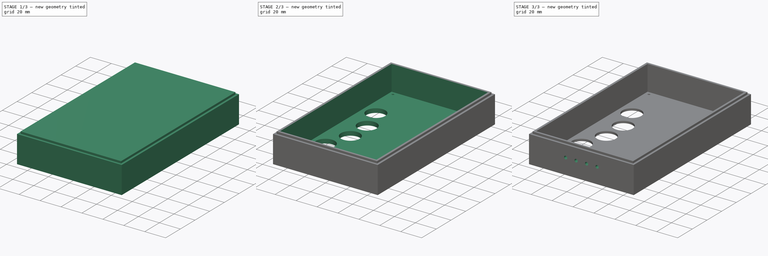
[diagram: build sequence overview — one tinted view per stage of 3, left to right]
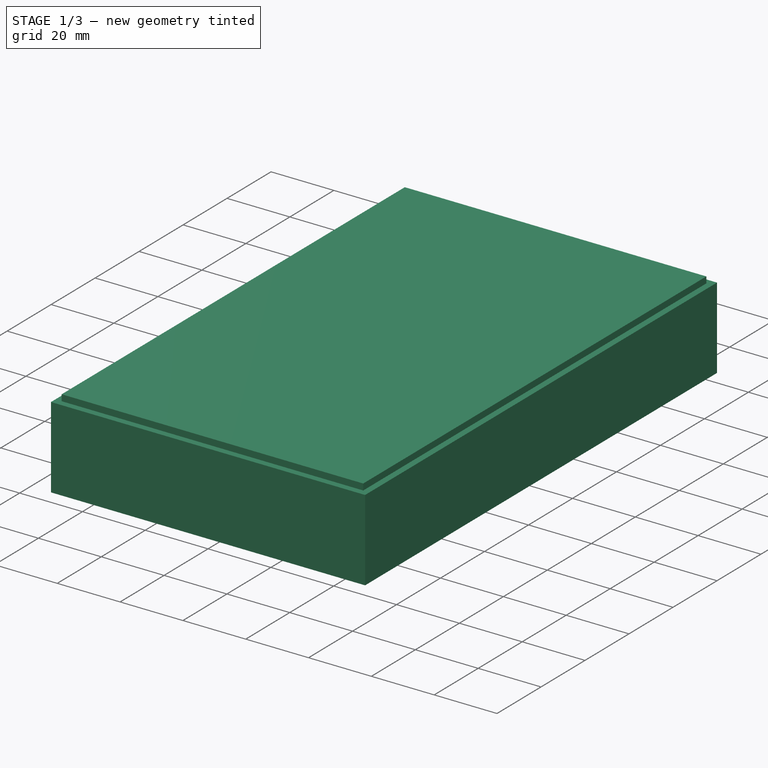
[diagram: stage 1 of 3 — iso view after this stage's code; geometry added in this stage tinted green]
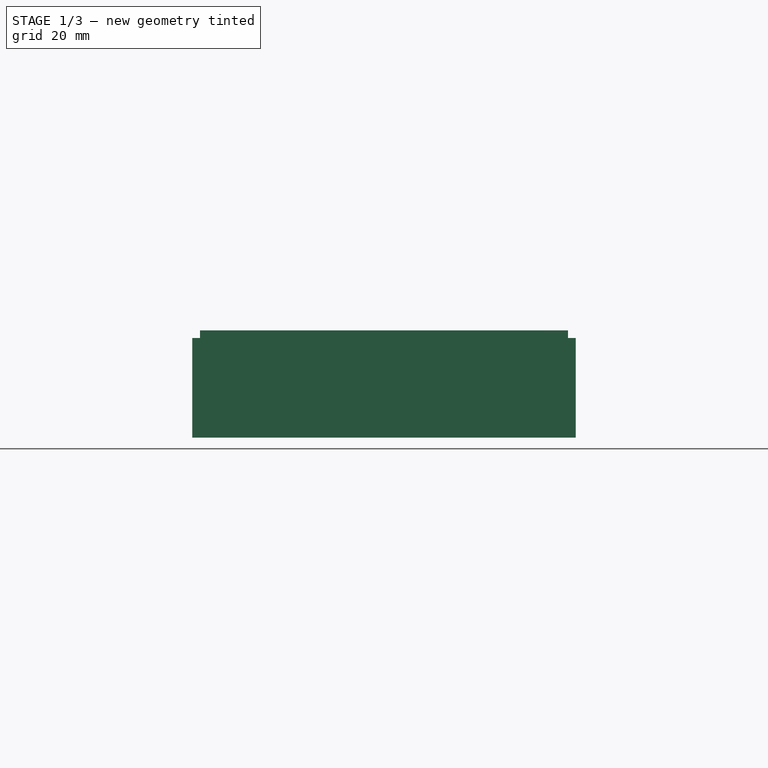
[diagram: stage 1 of 3 — front view after this stage's code; geometry added in this stage tinted green]
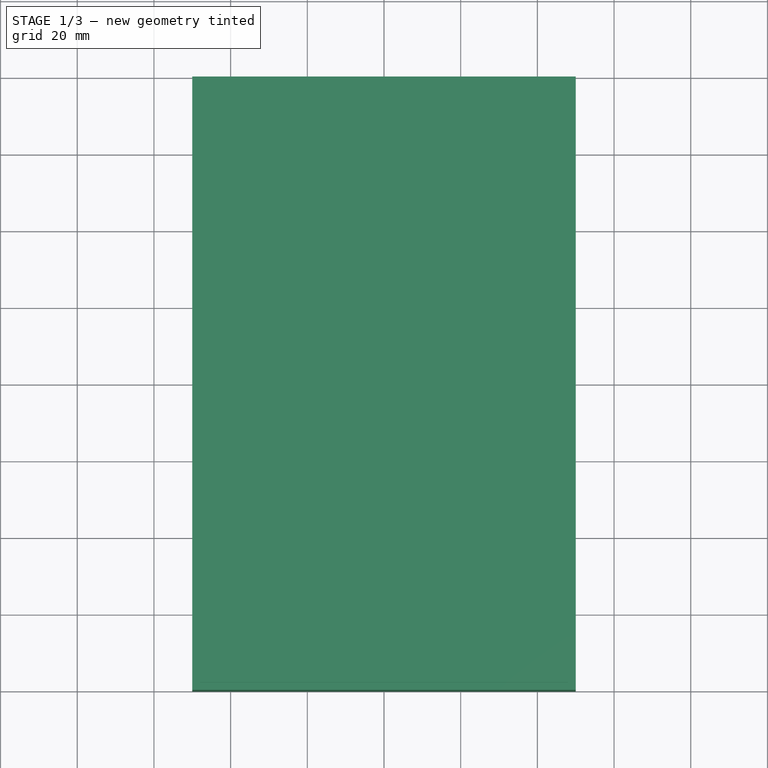
[diagram: stage 1 of 3 — top view after this stage's code; geometry added in this stage tinted green]
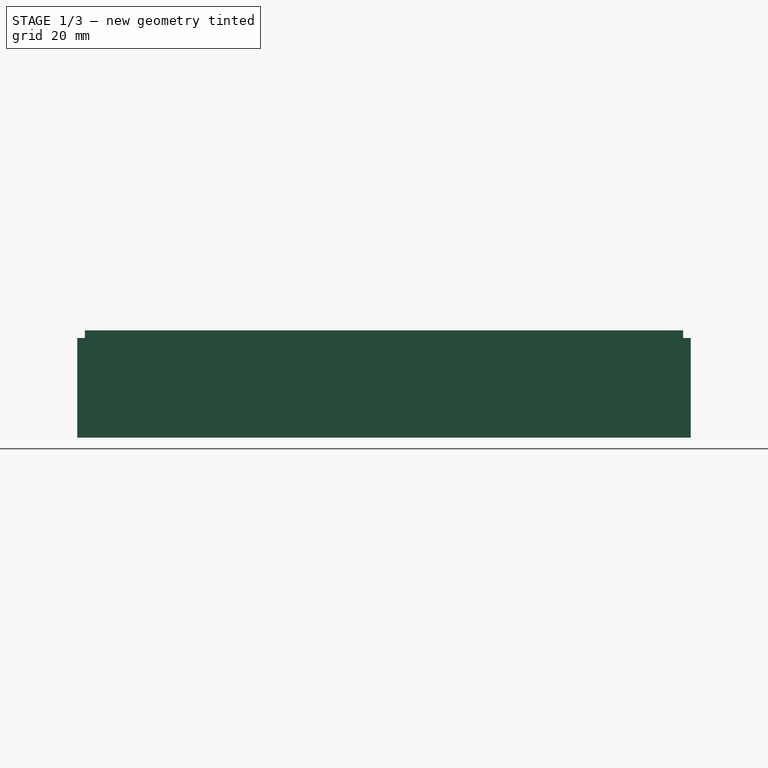
[diagram: stage 1 of 3 — right view after this stage's code; geometry added in this stage tinted green]
FCSTD DOCUMENT  (FreeCAD 0.19R24291 (Git))
Label: trueimage_10button_top
License: All rights reserved
LicenseURL: http://en.wikipedia.org/wiki/All_rights_reserved
objects: Sketcher::SketchObject×7, PartDesign::Pocket×5, PartDesign::Pad×2, PartDesign::Body×1
note: 22 computed .brp shape members not serialized (recipe doc carries the construction recipe); baked Part::Feature solids carry a one-line shape summary decoded from their .brp

FEATURE [Sketcher::SketchObject] Sketch
  FullyConstrained = true
  MapMode = 5
  Support = -> [XY_Plane]
  sketch-geometry (4):
    g0: LineSegment StartX=-50 StartY=80 StartZ=0 EndX=50 EndY=80 EndZ=0
    g1: LineSegment StartX=50 StartY=80 StartZ=0 EndX=50 EndY=-80 EndZ=0
    g2: LineSegment StartX=50 StartY=-80 StartZ=0 EndX=-50 EndY=-80 EndZ=0
    g3: LineSegment StartX=-50 StartY=-80 StartZ=0 EndX=-50 EndY=80 EndZ=0
  constraints (10):
    c: Coincident(g0,g1)
    c: Coincident(g1,g2)
    c: Coincident(g2,g3)
    c: Coincident(g3,g0)
    c: Horizontal(g2)
    c: Vertical(g3)
    c: DistanceX(g2,g1) = 100
    c: DistanceY(g1,g1) = 160
    c: Symmetric(g0,g1,g-1)
    c: Symmetric(g0,g0,g-2)
FEATURE [PartDesign::Pad] Pad
  Direction = (1,1,1)
  Length = 26
  Length2 = 100
  Profile = -> Sketch
  Refine = true
  Type = 0
FEATURE [Sketcher::SketchObject] Sketch001
  FullyConstrained = true
  MapMode = 5
  Support = -> [XY_Plane]
  sketch-geometry (4):
    g0: LineSegment StartX=-48 StartY=78 StartZ=0 EndX=48 EndY=78 EndZ=0
    g1: LineSegment StartX=48 StartY=78 StartZ=0 EndX=48 EndY=-78 EndZ=0
    g2: LineSegment StartX=48 StartY=-78 StartZ=0 EndX=-48 EndY=-78 EndZ=0
    g3: LineSegment StartX=-48 StartY=-78 StartZ=0 EndX=-48 EndY=78 EndZ=0
  constraints (10):
    c: Coincident(g0,g1)
    c: Coincident(g1,g2)
    c: Coincident(g2,g3)
    c: Coincident(g3,g0)
    c: Horizontal(g2)
    c: Vertical(g3)
    c: Symmetric(g0,g1,g-1)
    c: Symmetric(g0,g0,g-2)
    c: DistanceY(g1,g1) = 156
    c: DistanceX(g2,g2) = 96
FEATURE [Sketcher::SketchObject] Sketch002
  FullyConstrained = true
  MapMode = 5
  Support = -> [XY_Plane]
  sketch-geometry (4):
    g0: Circle CenterX=42.25 CenterY=72.5 CenterZ=0 NormalX=0 NormalY=0 NormalZ=1 AngleXU=0 Radius=1
    g1: Circle CenterX=-42.25 CenterY=72.5 CenterZ=0 NormalX=0 NormalY=0 NormalZ=1 AngleXU=0 Radius=1
    g2: Circle CenterX=42.25 CenterY=-72.5 CenterZ=0 NormalX=0 NormalY=0 NormalZ=1 AngleXU=0 Radius=1
    g3: Circle CenterX=-42.25 CenterY=-72.5 CenterZ=0 NormalX=0 NormalY=0 NormalZ=1 AngleXU=0 Radius=1
  constraints (10):
    c: Radius(g0) = 1
    c: Radius(g1) = 1
    c: DistanceX(g1,g0) = 84.5
    c: Symmetric(g2,g3,g-2)
    c: Symmetric(g2,g0,g-1)
    c: Horizontal(g0,g1)
    c: Vertical(g1,g3)
    c: Equal(g3,g2)
    c: Equal(g2,g0)
    c: DistanceY(g2,g0) = 145
FEATURE [Sketcher::SketchObject] Sketch003
  FullyConstrained = false
  MapMode = 5
  Support = -> [XY_Plane]
  sketch-geometry (8):
    g0: Circle CenterX=33.25 CenterY=36.5 CenterZ=0 NormalX=0 NormalY=0 NormalZ=1 AngleXU=0 Radius=9
    g1: Circle CenterX=25.45 CenterY=13.5 CenterZ=0 NormalX=0 NormalY=0 NormalZ=1 AngleXU=0 Radius=9
    g2: Circle CenterX=25.45 CenterY=-9.5 CenterZ=0 NormalX=0 NormalY=0 NormalZ=1 AngleXU=0 Radius=9
    g3: Circle CenterX=33.25 CenterY=-32.5 CenterZ=0 NormalX=0 NormalY=0 NormalZ=1 AngleXU=0 Radius=9
    g4: Circle CenterX=-33.25 CenterY=36.5 CenterZ=0 NormalX=0 NormalY=0 NormalZ=1 AngleXU=0 Radius=9
    g5: Circle CenterX=-25.45 CenterY=13.5 CenterZ=0 NormalX=0 NormalY=0 NormalZ=1 AngleXU=0 Radius=9
    g6: Circle CenterX=-25.45 CenterY=-9.5 CenterZ=0 NormalX=0 NormalY=0 NormalZ=1 AngleXU=0 Radius=9
    g7: Circle CenterX=-33.25 CenterY=-32.5 CenterZ=0 NormalX=0 NormalY=0 NormalZ=1 AngleXU=0 Radius=9
  constraints (20):
    c: Radius(g0) = 9
    c: Radius(g1) = 9
    c: DistanceY(g1,g0) = 23
    c: DistanceX(g1,g0) = 7.8
    c: Radius(g2) = 9
    c: Vertical(g2,g1)
    c: DistanceY(g2,g1) = 23
    c: Radius(g3) = 9
    c: Vertical(g0,g3)
    c: DistanceY(g3,g2) = 23
    c: Radius(g4) = 9
    c: DistanceX(g4,g5) = 7.8
    c: Radius(g5) = 9
    c: DistanceY(g5,g4) = 23
    c: Vertical(g5,g6)
    c: Equal(g6,g5)
    c: DistanceY(g6,g5) = 23
    c: Vertical(g7,g4)
    c: Equal(g7,g4)
    c: DistanceY(g7,g6) = 23
FEATURE [Sketcher::SketchObject] Sketch005
  AttachmentOffset = pos=(0,0,28) rot=(0,0,1;0rad)
  FullyConstrained = false
  MapMode = 5
  Placement = pos=(0,0,28) rot=(0,0,1;0rad)
  Support = -> [XY_Plane]
  sketch-geometry (4):
    g0: LineSegment StartX=-46 StartY=76 StartZ=0 EndX=46 EndY=76 EndZ=0
    g1: LineSegment StartX=46 StartY=76 StartZ=0 EndX=46 EndY=-76 EndZ=0
    g2: LineSegment StartX=46 StartY=-76 StartZ=0 EndX=-46 EndY=-76 EndZ=0
    g3: LineSegment StartX=-46 StartY=-76 StartZ=0 EndX=-46 EndY=76 EndZ=0
  constraints (8):
    c: Coincident(g0,g1)
    c: Coincident(g1,g2)
    c: Coincident(g2,g3)
    c: Coincident(g3,g0)
    c: Horizontal(g2)
    c: Vertical(g3)
    c: Symmetric(g0,g1,g-1)
    c: Symmetric(g0,g0,g-2)
FEATURE [PartDesign::Pad] Pad001
  BaseFeature = -> Pad
  Direction = (1,1,1)
  Length = 28
  Length2 = 100
  Profile = -> Sketch001
  Refine = true
  Type = 0
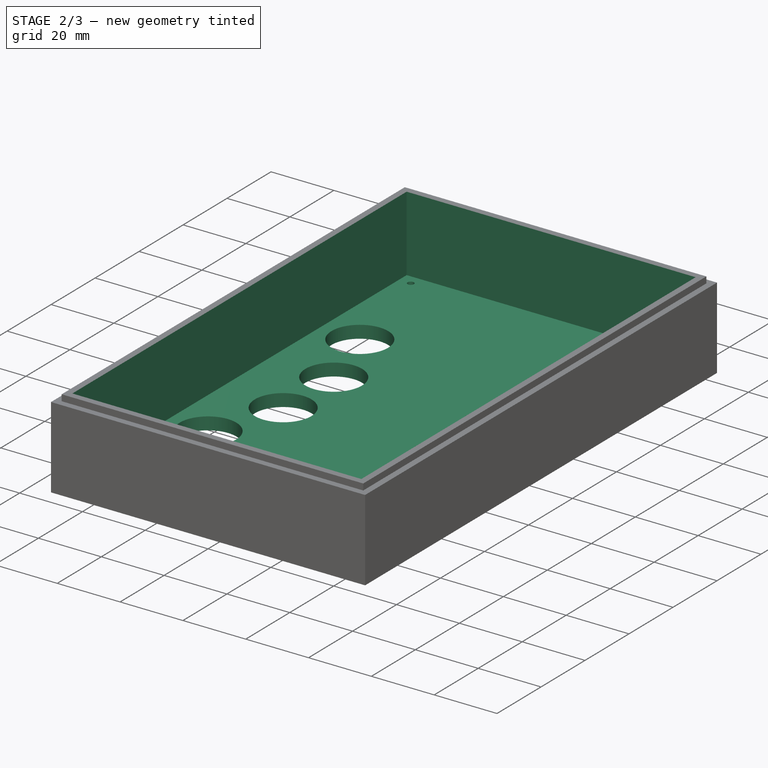
[diagram: stage 2 of 3 — iso view after this stage's code; geometry added in this stage tinted green]
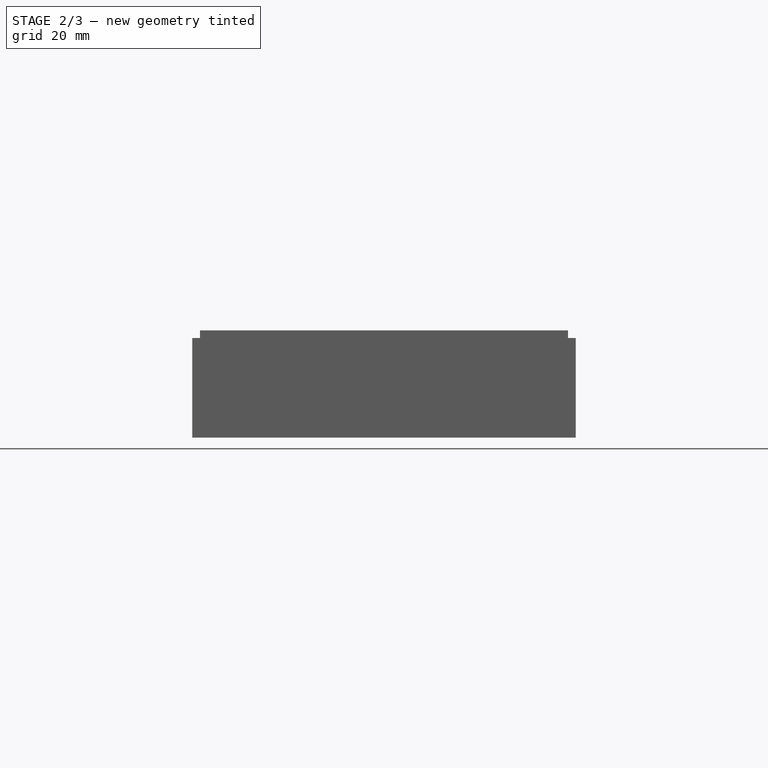
[diagram: stage 2 of 3 — front view after this stage's code; geometry added in this stage tinted green]
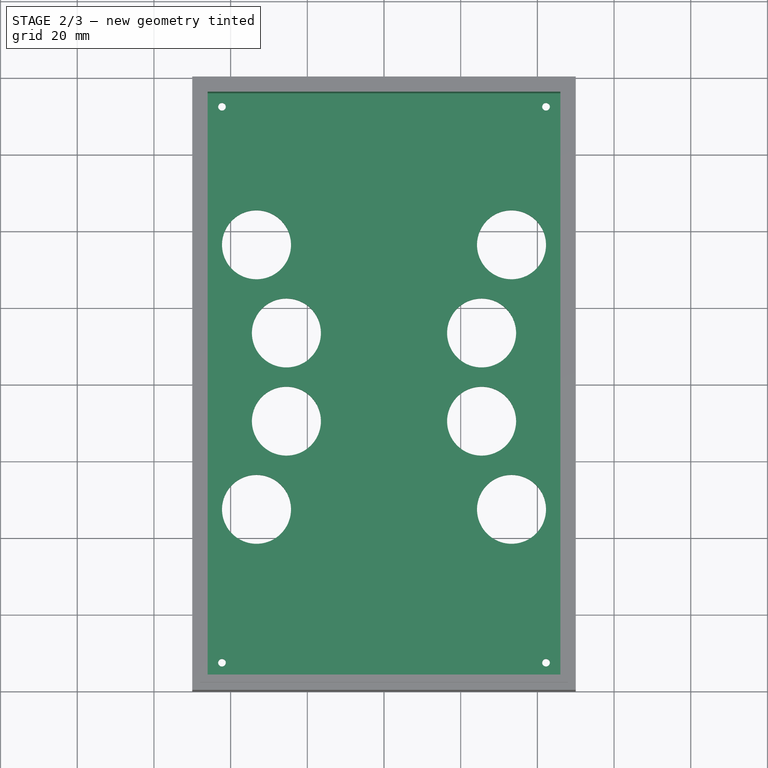
[diagram: stage 2 of 3 — top view after this stage's code; geometry added in this stage tinted green]
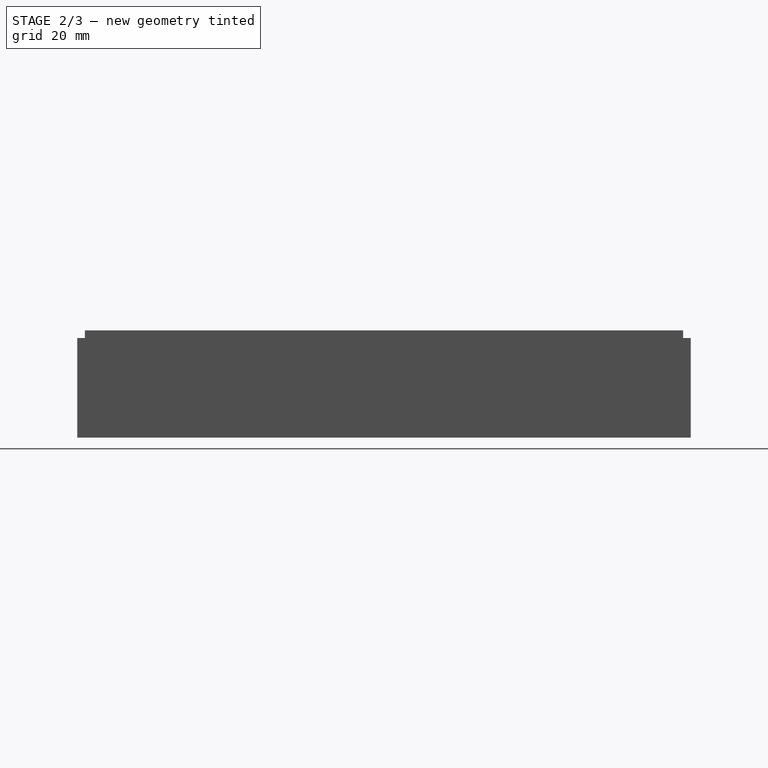
[diagram: stage 2 of 3 — right view after this stage's code; geometry added in this stage tinted green]
FEATURE [PartDesign::Pocket] Pocket  label="top_pocket"
  BaseFeature = -> Pad001
  Length = 24
  Length2 = 100
  Profile = -> Sketch005
  Refine = true
  Type = 0
FEATURE [PartDesign::Pocket] Pocket001  label="button_holes"
  BaseFeature = -> Pocket
  Length = 5
  Length2 = 100
  Profile = -> Sketch003
  Refine = true
  Reversed = true
  Type = 1
FEATURE [PartDesign::Pocket] Pocket002  label="screw_holes"
  BaseFeature = -> Pocket001
  Length = 5
  Length2 = 100
  Profile = -> Sketch002
  Refine = true
  Reversed = true
  Type = 1
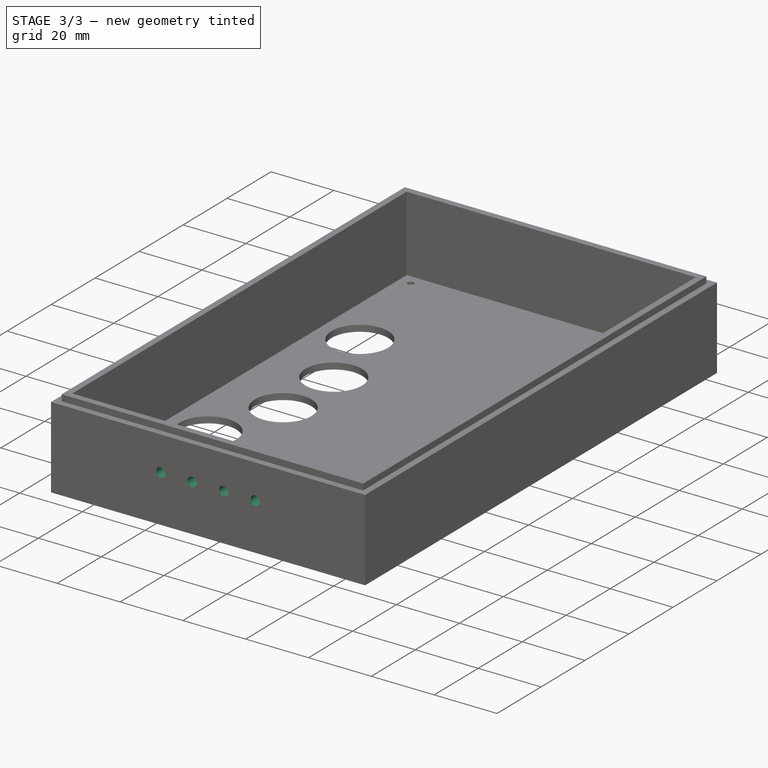
[diagram: stage 3 of 3 — iso view after this stage's code; geometry added in this stage tinted green]
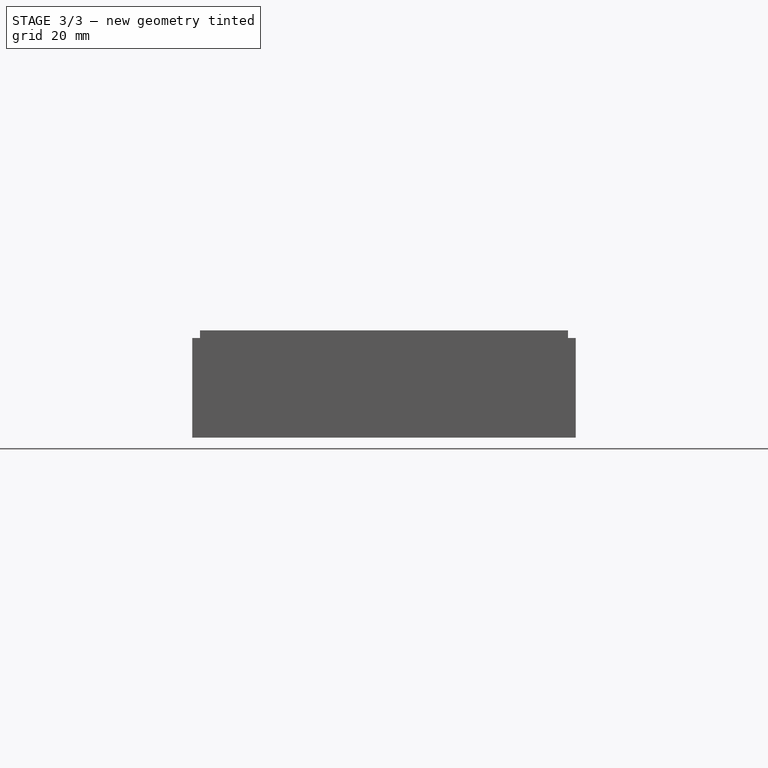
[diagram: stage 3 of 3 — front view after this stage's code; geometry added in this stage tinted green]
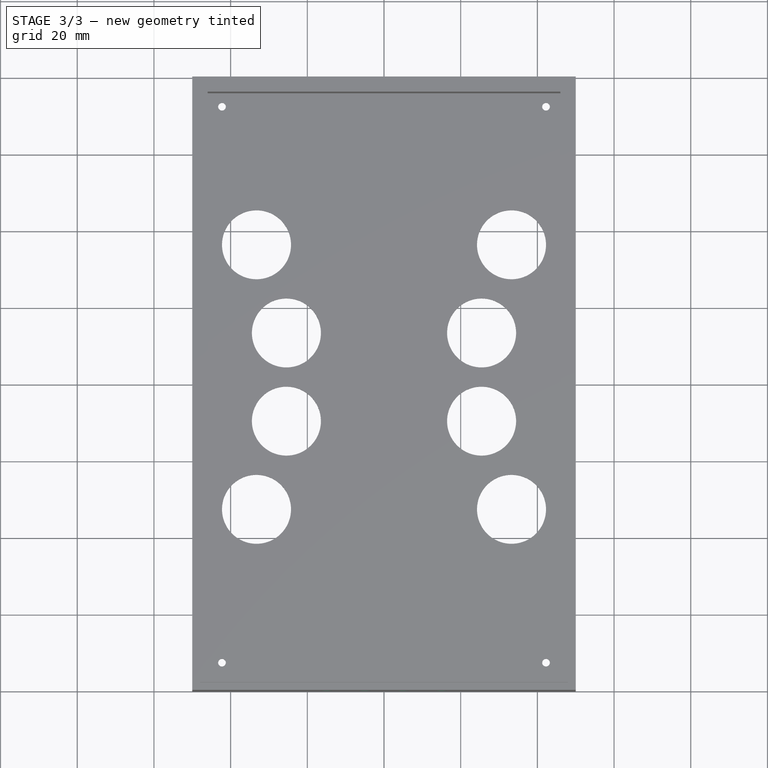
[diagram: stage 3 of 3 — top view after this stage's code; geometry added in this stage tinted green]
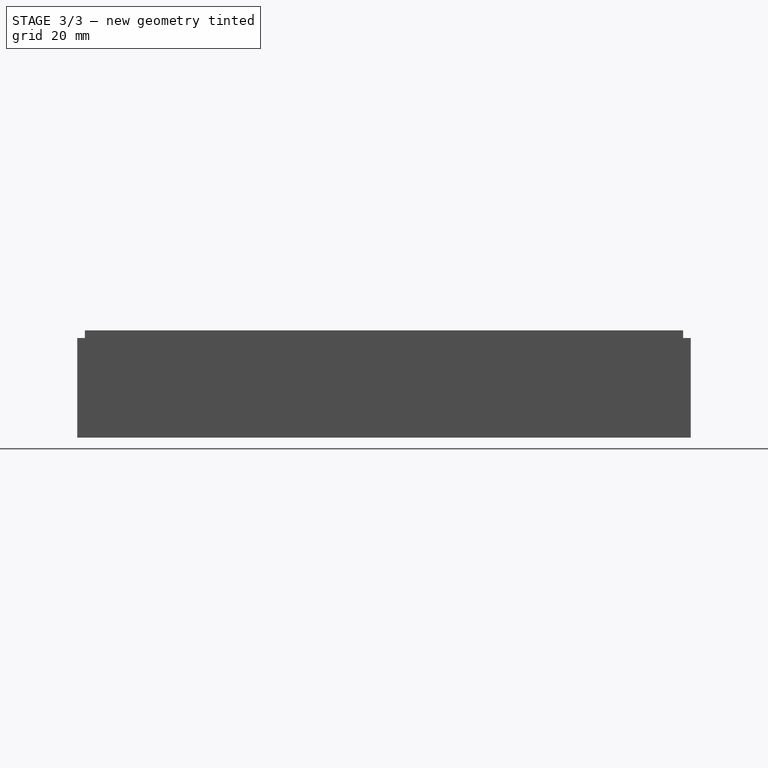
[diagram: stage 3 of 3 — right view after this stage's code; geometry added in this stage tinted green]
FEATURE [Sketcher::SketchObject] Sketch006
  ExternalGeometry = -> [Pocket002]
  FullyConstrained = true
  MapMode = 5
  Support = -> [XY_Plane]
  sketch-geometry (4):
    g0: LineSegment StartX=-48 StartY=78 StartZ=0 EndX=48 EndY=78 EndZ=0
    g1: LineSegment StartX=48 StartY=78 StartZ=0 EndX=48 EndY=-78 EndZ=0
    g2: LineSegment StartX=48 StartY=-78 StartZ=0 EndX=-48 EndY=-78 EndZ=0
    g3: LineSegment StartX=-48 StartY=-78 StartZ=0 EndX=-48 EndY=78 EndZ=0
  constraints (9):
    c: Coincident(g0,g1)
    c: Coincident(g1,g2)
    c: Coincident(g2,g3)
    c: Coincident(g3,g0)
    c: Horizontal(g2)
    c: Vertical(g3)
    c: Symmetric(g0,g0,g-2)
    c: Symmetric(g0,g1,g-1)
    c: Coincident(g-3,g0)
FEATURE [PartDesign::Pocket] Pocket003  label="bottom_pocket"
  BaseFeature = -> Pocket002
  Length = 2
  Length2 = 100
  Profile = -> Sketch006
  Refine = true
  Reversed = true
  Type = 0
FEATURE [Sketcher::SketchObject] Sketch007
  AttachmentOffset = pos=(0,0,80) rot=(0,0,1;0rad)
  FullyConstrained = true
  MapMode = 5
  Placement = pos=(0,-80,-1.78e-14) rot=(1,0,0;1.5708rad)
  Support = -> [XZ_Plane]
  sketch-geometry (4):
    g0: Circle CenterX=-15 CenterY=15 CenterZ=0 NormalX=0 NormalY=0 NormalZ=1 AngleXU=0 Radius=1.5
    g1: Circle CenterX=-5 CenterY=15 CenterZ=0 NormalX=0 NormalY=0 NormalZ=1 AngleXU=0 Radius=1.5
    g2: Circle CenterX=5 CenterY=15 CenterZ=0 NormalX=0 NormalY=0 NormalZ=1 AngleXU=0 Radius=1.5
    g3: Circle CenterX=15 CenterY=15 CenterZ=0 NormalX=0 NormalY=0 NormalZ=1 AngleXU=0 Radius=1.5
  constraints (12):
    c: DistanceY(g-1,g0) = 15
    c: DistanceX(g0) = -15
    c: Horizontal(g1,g0)
    c: Equal(g1,g0)
    c: DistanceX(g0,g1) = 10
    c: Horizontal(g2,g1)
    c: Horizontal(g3,g2)
    c: Equal(g2,g1)
    c: Equal(g3,g2)
    c: DistanceX(g1,g2) = 10
    c: DistanceX(g2,g3) = 10
    c: Radius(g1) = 1.5
FEATURE [PartDesign::Pocket] Pocket004
  BaseFeature = -> Pocket003
  Length = 10
  Length2 = 100
  Profile = -> Sketch007
  Refine = true
  Type = 0
FEATURE [PartDesign::Body] Body
  Group = -> [Sketch,Pad,Sketch001,Sketch005,Sketch003,Sketch002,Pad001,Pocket,Pocket001,Pocket002,Sketch006,Pocket003,Sketch007,Pocket004]
  Origin = -> Origin
  Tip = -> Pocket004
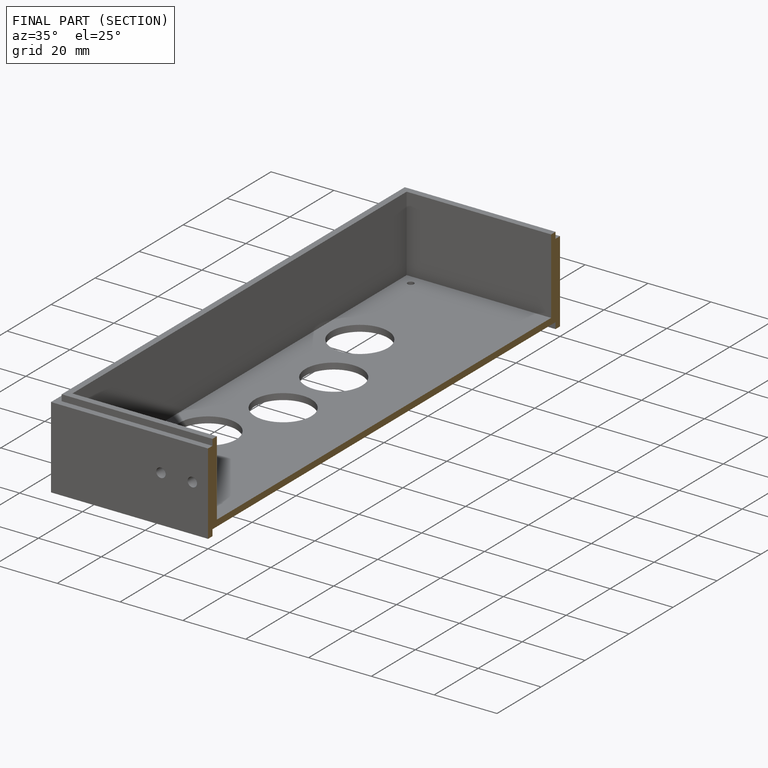
[diagram: finished part — half-section view (interior)]
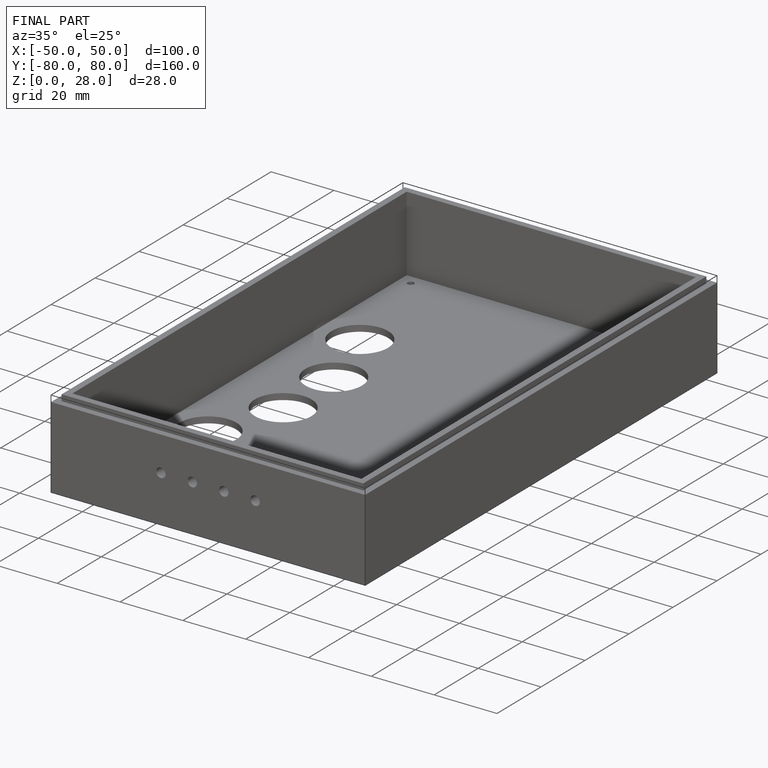
[diagram: finished part — iso view with bounding-box wireframe]
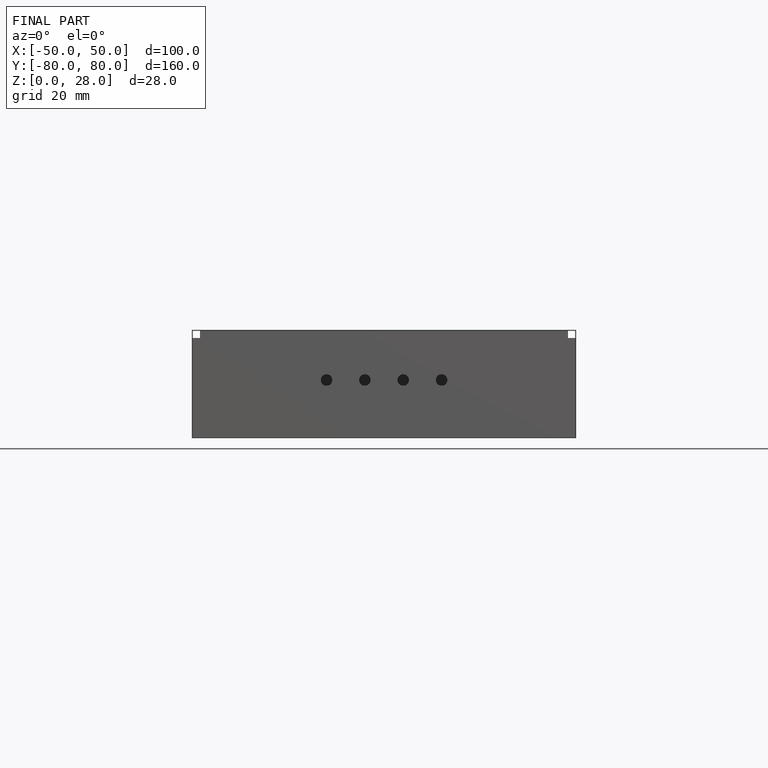
[diagram: finished part — front view with bounding-box wireframe]
